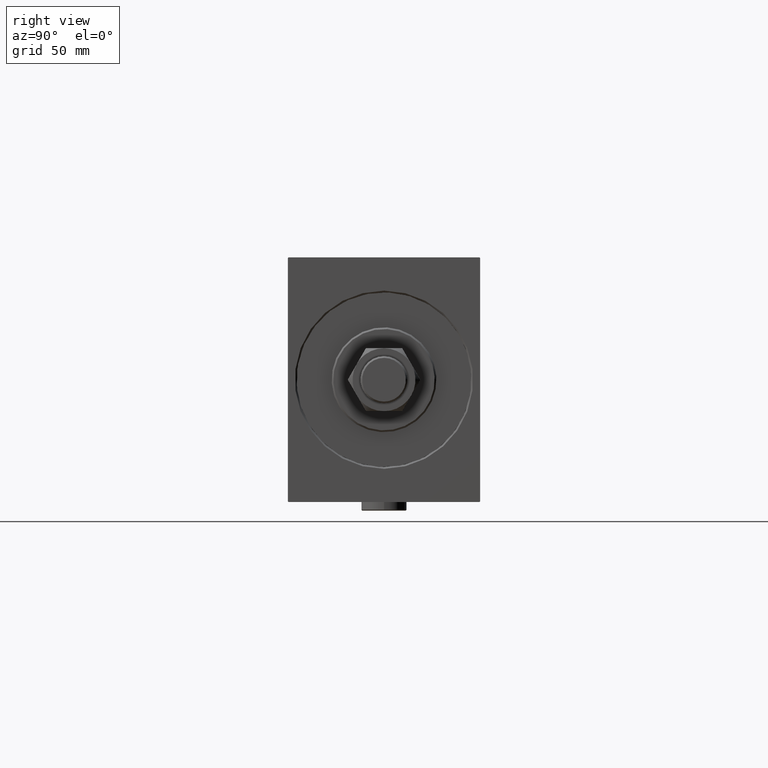
[diagram: clean part render]
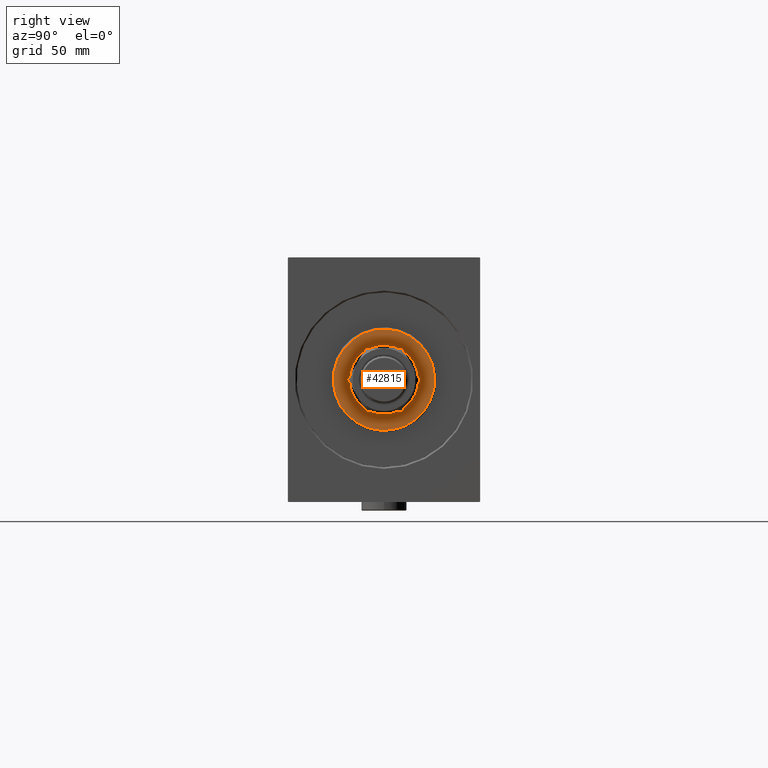
[diagram: same view with one face highlighted and labeled with its STEP entity id]
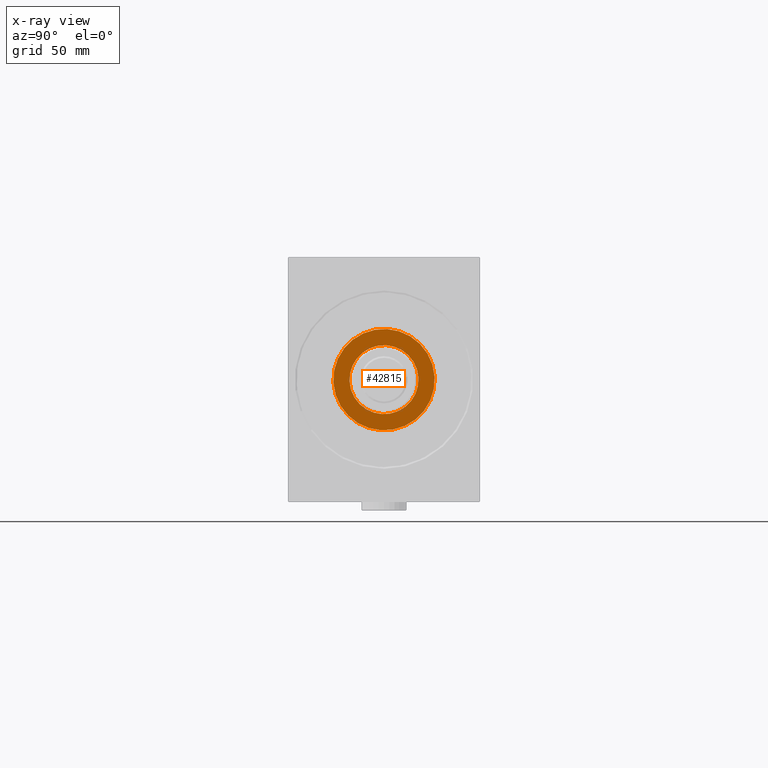
[diagram: x-ray of the same camera — body ghosted, the highlighted face saturated]
A machine part, right view. The second image highlights one B-rep face of the part: STEP entity #42815.
The next image is the same camera in x-ray: the body ghosted, the highlighted face saturated — about 0% of this face is hidden behind the body in this view.
In plain terms, the highlighted planar face has unit normal (1, -0, -0).
Its self-contained STEP definition (entity closure, byte-faithful):
#1151 = DIRECTION ( 'NONE',  ( 0.000000000000000000, 0.000000000000000000, -1.000000000000000000 ) ) ;
#1897 = CARTESIAN_POINT ( 'NONE',  ( 3.000000000000000000, 0.000000000000000000, 0.000000000000000000 ) ) ;
#2094 = DIRECTION ( 'NONE',  ( 1.000000000000000000, 0.000000000000000000, 0.000000000000000000 ) ) ;
#2609 = CIRCLE ( 'NONE', #34558, 19.75000000000000000 ) ;
#2773 = CARTESIAN_POINT ( 'NONE',  ( 3.000000000000000000, 0.000000000000000000, -19.75000000000000000 ) ) ;
#6078 = FACE_BOUND ( 'NONE', #16502, .T. ) ;
#7979 = DIRECTION ( 'NONE',  ( 0.000000000000000000, 0.000000000000000000, -1.000000000000000000 ) ) ;
#8036 = CIRCLE ( 'NONE', #34047, 28.99999999999999289 ) ;
#8853 = CARTESIAN_POINT ( 'NONE',  ( 3.000000000000000000, 3.612708057484691604E-15, -28.99999999999999289 ) ) ;
#9475 = CARTESIAN_POINT ( 'NONE',  ( 3.000000000000000000, 2.418677428316022726E-15, 19.75000000000000000 ) ) ;
#10621 = ORIENTED_EDGE ( 'NONE', *, *, #39768, .T. ) ;
#11926 = EDGE_CURVE ( 'NONE', #37468, #40591, #8036, .T. ) ;
#13038 = VERTEX_POINT ( 'NONE', #2773 ) ;
#13593 = ORIENTED_EDGE ( 'NONE', *, *, #17377, .F. ) ;
#13680 = ORIENTED_EDGE ( 'NONE', *, *, #11926, .T. ) ;
#14278 = AXIS2_PLACEMENT_3D ( 'NONE', #1897, #20288, #37273 ) ;
#15106 = DIRECTION ( 'NONE',  ( 1.000000000000000000, -0.000000000000000000, 0.000000000000000000 ) ) ;
#15702 = CIRCLE ( 'NONE', #22372, 28.99999999999999289 ) ;
#16020 = CARTESIAN_POINT ( 'NONE',  ( 3.000000000000000000, 0.000000000000000000, 0.000000000000000000 ) ) ;
#16502 = EDGE_LOOP ( 'NONE', ( #13593, #36567 ) ) ;
#17377 = EDGE_CURVE ( 'NONE', #13038, #45886, #2609, .T. ) ;
#18903 = DIRECTION ( 'NONE',  ( 1.000000000000000000, -0.000000000000000000, 0.000000000000000000 ) ) ;
#19773 = CARTESIAN_POINT ( 'NONE',  ( 3.000000000000000000, 0.000000000000000000, 0.000000000000000000 ) ) ;
#20288 = DIRECTION ( 'NONE',  ( 1.000000000000000000, -0.000000000000000000, 0.000000000000000000 ) ) ;
#20779 = DIRECTION ( 'NONE',  ( 1.000000000000000000, 0.000000000000000000, 0.000000000000000000 ) ) ;
#21456 = DIRECTION ( 'NONE',  ( 0.000000000000000000, 0.000000000000000000, -1.000000000000000000 ) ) ;
#21541 = EDGE_CURVE ( 'NONE', #45886, #13038, #44962, .T. ) ;
#22372 = AXIS2_PLACEMENT_3D ( 'NONE', #44022, #18903, #7979 ) ;
#22806 = DIRECTION ( 'NONE',  ( 0.000000000000000000, 0.000000000000000000, -1.000000000000000000 ) ) ;
#24919 = AXIS2_PLACEMENT_3D ( 'NONE', #38697, #20779, #21456 ) ;
#26367 = EDGE_LOOP ( 'NONE', ( #10621, #13680 ) ) ;
#27502 = PLANE ( 'NONE',  #14278 ) ;
#34047 = AXIS2_PLACEMENT_3D ( 'NONE', #16020, #15106, #1151 ) ;
#34558 = AXIS2_PLACEMENT_3D ( 'NONE', #19773, #2094, #22806 ) ;
#36567 = ORIENTED_EDGE ( 'NONE', *, *, #21541, .F. ) ;
#37273 = DIRECTION ( 'NONE',  ( 0.000000000000000000, 0.000000000000000000, -1.000000000000000000 ) ) ;
#37468 = VERTEX_POINT ( 'NONE', #8853 ) ;
#38697 = CARTESIAN_POINT ( 'NONE',  ( 3.000000000000000000, 0.000000000000000000, 0.000000000000000000 ) ) ;
#39768 = EDGE_CURVE ( 'NONE', #40591, #37468, #15702, .T. ) ;
#40591 = VERTEX_POINT ( 'NONE', #42219 ) ;
#42219 = CARTESIAN_POINT ( 'NONE',  ( 3.000000000000000000, 0.000000000000000000, 28.99999999999999289 ) ) ;
#42815 = ADVANCED_FACE ( 'NONE', ( #44929, #6078 ), #27502, .T. ) ;
#44022 = CARTESIAN_POINT ( 'NONE',  ( 3.000000000000000000, 0.000000000000000000, 0.000000000000000000 ) ) ;
#44929 = FACE_OUTER_BOUND ( 'NONE', #26367, .T. ) ;
#44962 = CIRCLE ( 'NONE', #24919, 19.75000000000000000 ) ;
#45886 = VERTEX_POINT ( 'NONE', #9475 ) ;